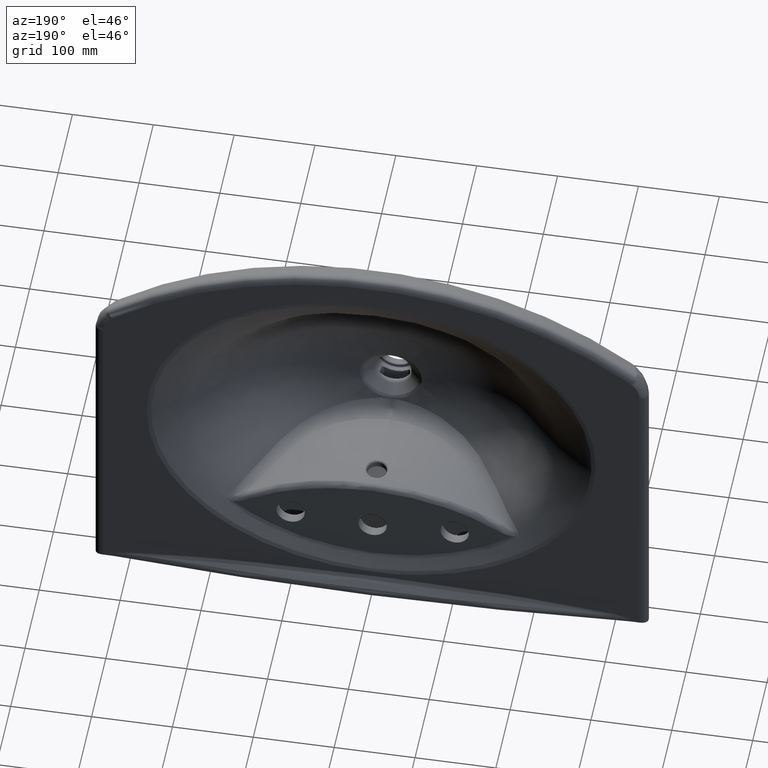
[diagram: clean part render]
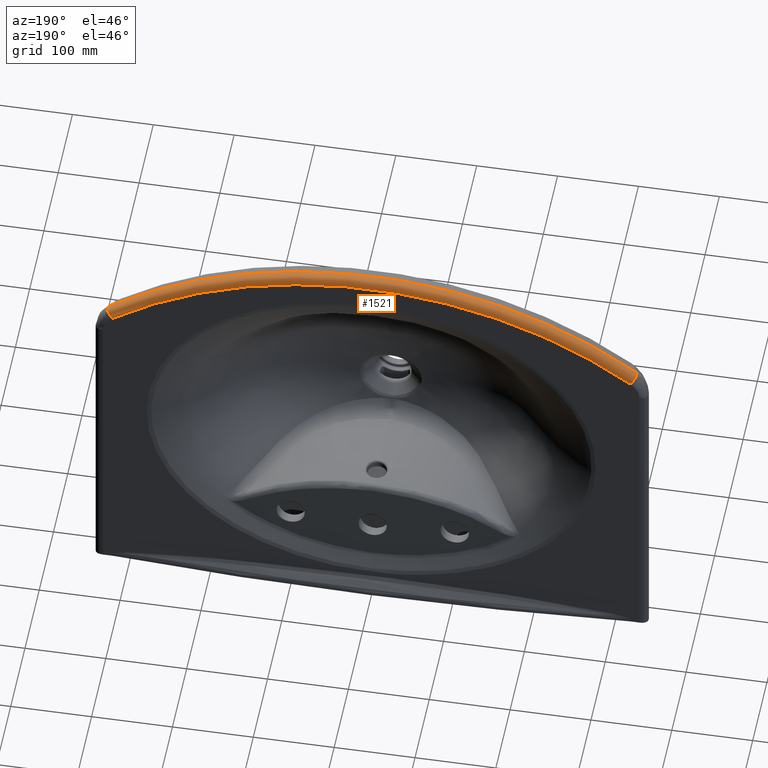
[diagram: same view with one face highlighted and labeled with its STEP entity id]
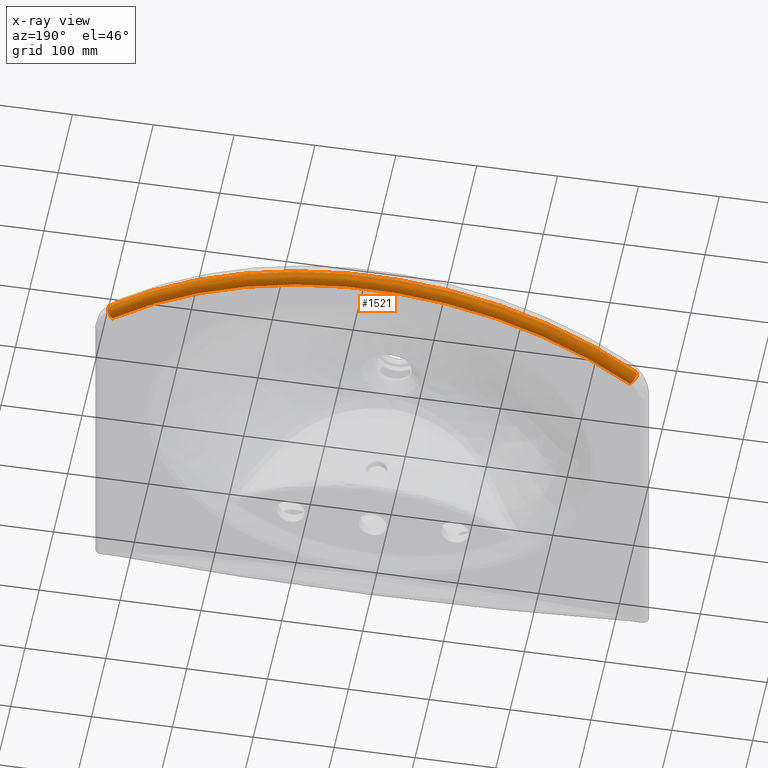
[diagram: x-ray of the same camera — body ghosted, the highlighted face saturated]
A machine part, auxiliary view. The second image highlights one B-rep face of the part: STEP entity #1521.
The next image is the same camera in x-ray: the body ghosted, the highlighted face saturated — about 0% of this face is hidden behind the body in this view.
In plain terms, the highlighted face is a SurfaceOfRevolution surface.
Its self-contained STEP definition (entity closure, byte-faithful):
#104=SURFACE_OF_REVOLUTION('',#7279,#107);
#107=AXIS1_PLACEMENT('',#43099,#8278);
#380=CIRCLE('',#7565,527.3563528555);
#384=CIRCLE('',#7573,536.8040096475);
#1521=ADVANCED_FACE('',(#2046),#104,.T.);
#2046=FACE_OUTER_BOUND('',#2534,.T.);
#2534=EDGE_LOOP('',(#4666,#4667,#4668,#4669));
#4666=ORIENTED_EDGE('',*,*,#6561,.T.);
#4667=ORIENTED_EDGE('',*,*,#6562,.T.);
#4668=ORIENTED_EDGE('',*,*,#6563,.F.);
#4669=ORIENTED_EDGE('',*,*,#6529,.F.);
#5448=VERTEX_POINT('',#41735);
#5449=VERTEX_POINT('',#41737);
#5463=VERTEX_POINT('',#43049);
#5464=VERTEX_POINT('',#43082);
#6529=EDGE_CURVE('',#5448,#5449,#380,.T.);
#6561=EDGE_CURVE('',#5448,#5463,#7277,.T.);
#6562=EDGE_CURVE('',#5463,#5464,#384,.T.);
#6563=EDGE_CURVE('',#5449,#5464,#7278,.T.);
#7277=B_SPLINE_CURVE_WITH_KNOTS('',3,(#43050,#43051,#43052,#43053),
 .UNSPECIFIED.,.F.,.F.,(4,4),(0.,1.),.UNSPECIFIED.);
#7278=B_SPLINE_CURVE_WITH_KNOTS('',3,(#43083,#43084,#43085,#43086,#43087,
#43088,#43089,#43090,#43091,#43092,#43093,#43094),.UNSPECIFIED.,.F.,.F.,
(4,2,2,2,2,4),(0.,0.25,0.375,0.5,0.75,1.),.UNSPECIFIED.);
#7279=B_SPLINE_CURVE_WITH_KNOTS('',3,(#43095,#43096,#43097,#43098),
 .UNSPECIFIED.,.F.,.F.,(4,4),(0.,1.),.UNSPECIFIED.);
#7565=AXIS2_PLACEMENT_3D('',#41736,#8254,#8255);
#7573=AXIS2_PLACEMENT_3D('',#43081,#8276,#8277);
#8254=DIRECTION('',(0.,1.,0.));
#8255=DIRECTION('',(-0.607363319695688,0.,0.794424192662984));
#8276=DIRECTION('',(0.,1.,0.));
#8277=DIRECTION('',(-0.607363303401623,0.,0.79442420512033));
#8278=DIRECTION('',(0.,1.,0.));
#41735=CARTESIAN_POINT('',(-320.2968502682,139.9999999991,185.9445731005));
#41736=CARTESIAN_POINT('',(0.,140.,-233.));
#41737=CARTESIAN_POINT('',(320.2969031499,140.,185.944646379));
#43049=CARTESIAN_POINT('',(-326.035174675,126.7225802851,193.4502317357));
#43050=CARTESIAN_POINT('',(-320.296851014042,139.9999999999,185.944572469713));
#43051=CARTESIAN_POINT('',(-325.987346225989,140.000028462691,193.387674317804));
#43052=CARTESIAN_POINT('',(-327.900091331588,135.574238560081,195.889522768703));
#43053=CARTESIAN_POINT('',(-326.03508633094,126.722630292171,193.45011782231));
#43081=CARTESIAN_POINT('',(0.,126.7225343419,-233.));
#43082=CARTESIAN_POINT('',(326.0350544986,126.7225343419,193.45010026));
#43083=CARTESIAN_POINT('',(320.297085251236,140.,185.944884689513));
#43084=CARTESIAN_POINT('',(320.479764132198,140.,186.183246834936));
#43085=CARTESIAN_POINT('',(321.323264265917,140.048005784537,187.286487460727));
#43086=CARTESIAN_POINT('',(323.057518121013,139.579926968841,189.555088203503));
#43087=CARTESIAN_POINT('',(323.705360454494,139.324032480934,190.402575747789));
#43088=CARTESIAN_POINT('',(324.952606508899,138.39224738215,192.034164455997));
#43089=CARTESIAN_POINT('',(325.571921505328,137.670292530383,192.844309655791));
#43090=CARTESIAN_POINT('',(326.854895457285,134.702186106704,194.522427777535));
#43091=CARTESIAN_POINT('',(326.803317370452,132.31783775575,194.454639618121));
#43092=CARTESIAN_POINT('',(326.44312823219,128.562297527322,193.983279607057));
#43093=CARTESIAN_POINT('',(326.134525293736,127.191106003248,193.579703146799));
#43094=CARTESIAN_POINT('',(326.035638593294,126.722851886887,193.450838660464));
#43095=CARTESIAN_POINT('',(-327.2253743314,126.7225283723,192.5374213204));
#43096=CARTESIAN_POINT('',(-329.0972244993,135.5742045869,194.9716527586));
#43097=CARTESIAN_POINT('',(-327.1775034069,140.0000284628,192.4751679887));
#43098=CARTESIAN_POINT('',(-321.4662110541,139.9999999999,185.0479670108));
#43099=CARTESIAN_POINT('',(0.,130.,-233.));